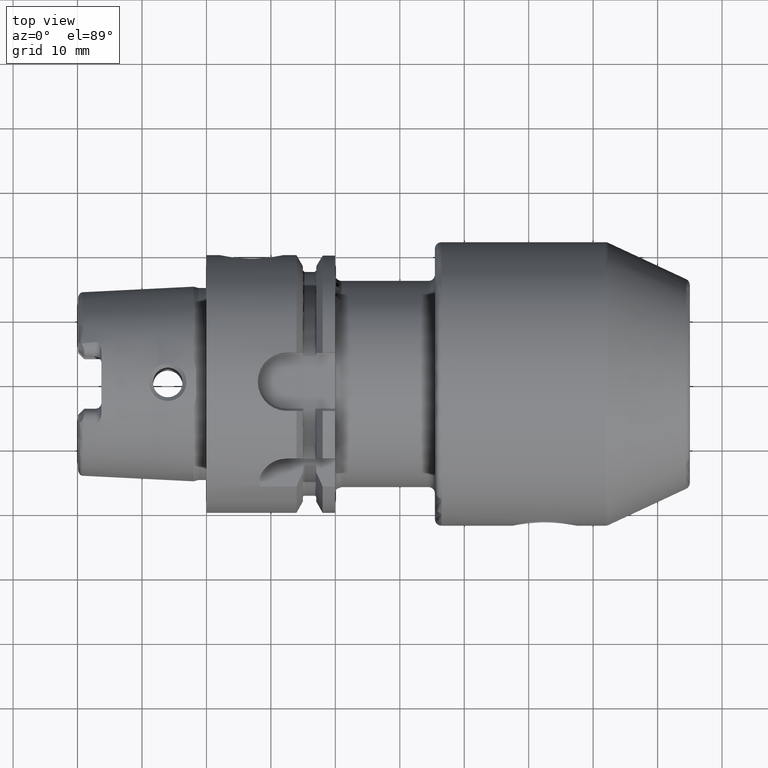
[diagram: clean part render]
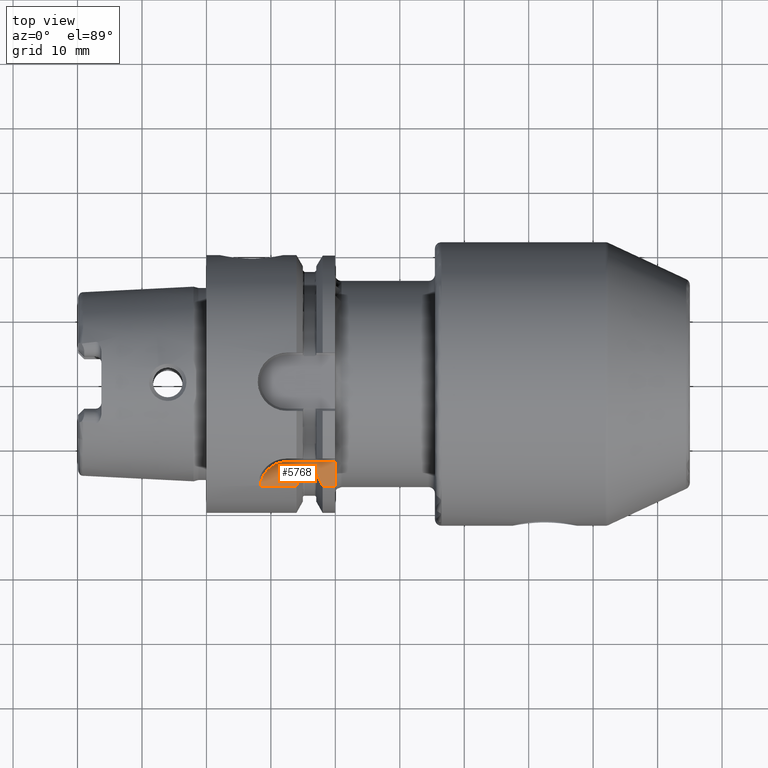
[diagram: same view with one face highlighted and labeled with its STEP entity id]
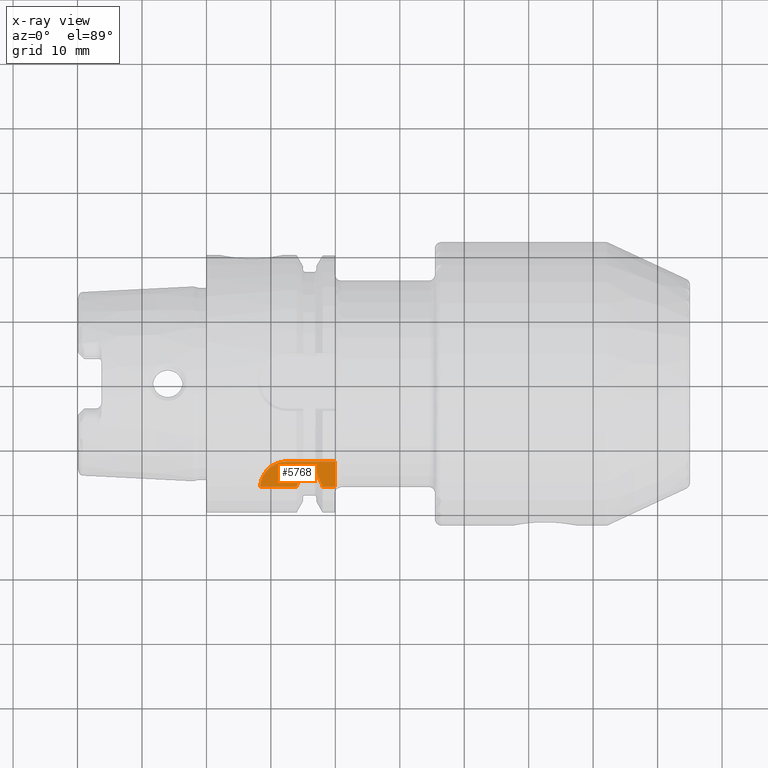
[diagram: x-ray of the same camera — body ghosted, the highlighted face saturated]
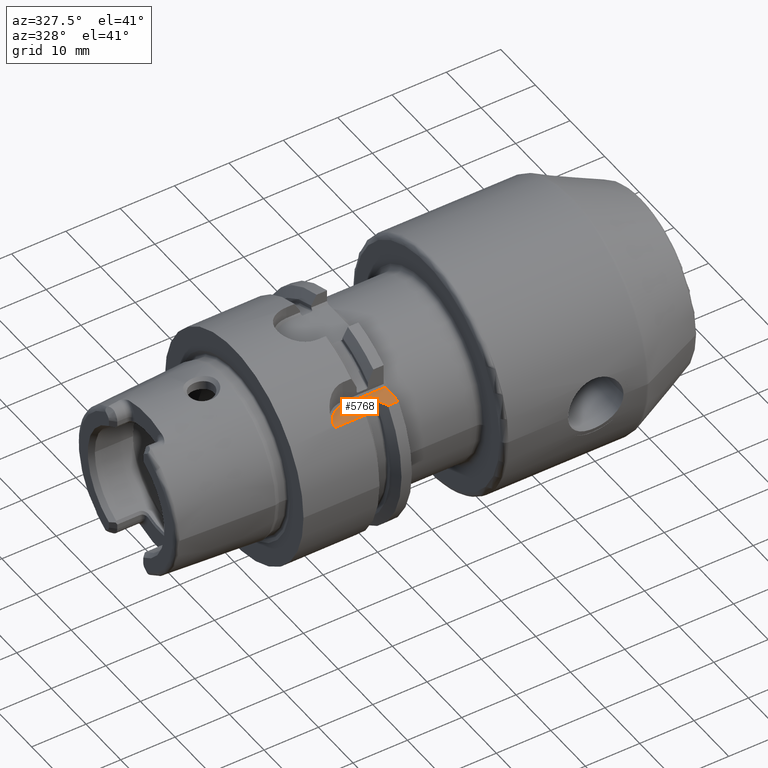
[diagram: same view with one face highlighted and labeled with its STEP entity id]
A machine part, top view. The second image highlights one B-rep face of the part: STEP entity #5768.
The next image is the same camera in x-ray: the body ghosted, the highlighted face saturated — about 0% of this face is hidden behind the body in this view.
A second angle (auxiliary view) of the same face is appended — the face is thin or edge-on in the first view.
In plain terms, the highlighted planar face has unit normal (0, 0, 1).
Its self-contained STEP definition (entity closure, byte-faithful):
#950=DIRECTION('',(9.999999999998E-1,3.226187417353E-8,-5.543925961060E-7));
#951=VECTOR('',#950,5.621520906691E0);
#952=CARTESIAN_POINT('',(8.343319394417E0,-1.611140918244E1,1.185000311653E1));
#953=LINE('',#952,#951);
#1012=DIRECTION('',(1.E0,0.E0,0.E0));
#1013=VECTOR('',#1012,1.914840301107E0);
#1014=CARTESIAN_POINT('',(1.803515969889E1,-1.611140900108E1,1.185E1));
#1015=LINE('',#1014,#1013);
#2059=DIRECTION('',(1.E0,0.E0,0.E0));
#2060=VECTOR('',#2059,1.575E0);
#2061=CARTESIAN_POINT('',(1.52125E1,-1.270701086015E1,1.185E1));
#2062=LINE('',#2061,#2060);
#2129=DIRECTION('',(0.E0,1.E0,0.E0));
#2130=VECTOR('',#2129,3.861409001077E0);
#2131=CARTESIAN_POINT('',(1.995E1,-1.611140900108E1,1.185E1));
#2132=LINE('',#2131,#2130);
#2133=CARTESIAN_POINT('',(1.70375E1,-1.390839973320E1,1.185E1));
#2134=CARTESIAN_POINT('',(1.713828706608E1,-1.413773688651E1,1.185E1));
#2135=CARTESIAN_POINT('',(1.734649495352E1,-1.460672643476E1,1.185E1));
#2136=CARTESIAN_POINT('',(1.767854805567E1,-1.534021584423E1,1.185E1));
#2137=CARTESIAN_POINT('',(1.791397076477E1,-1.585084160911E1,1.185E1));
#2138=CARTESIAN_POINT('',(1.803515969889E1,-1.611140900108E1,1.185E1));
#2140=DIRECTION('',(0.E0,1.E0,0.E0));
#2141=VECTOR('',#2140,8.616328923316E-1);
#2142=CARTESIAN_POINT('',(1.70375E1,-1.390839973320E1,1.185E1));
#2143=LINE('',#2142,#2141);
#2144=CARTESIAN_POINT('',(1.67875E1,-1.270701086015E1,1.185E1));
#2145=CARTESIAN_POINT('',(1.680913769842E1,-1.270701086015E1,1.185E1));
#2146=CARTESIAN_POINT('',(1.685099443118E1,-1.271450565490E1,1.185E1));
#2147=CARTESIAN_POINT('',(1.691051705588E1,-1.274685296718E1,1.185E1));
#2148=CARTESIAN_POINT('',(1.696380592505E1,-1.280064249144E1,1.185E1));
#2149=CARTESIAN_POINT('',(1.700603188840E1,-1.287360676896E1,1.185E1));
#2150=CARTESIAN_POINT('',(1.703215603103E1,-1.296010807975E1,1.185E1));
#2151=CARTESIAN_POINT('',(1.70375E1,-1.301741857478E1,1.185E1));
#2152=CARTESIAN_POINT('',(1.70375E1,-1.304676684087E1,1.185E1));
#2154=CARTESIAN_POINT('',(1.49625E1,-1.304676684087E1,1.185E1));
#2155=CARTESIAN_POINT('',(1.49625E1,-1.301596457443E1,1.185E1));
#2156=CARTESIAN_POINT('',(1.496845867767E1,-1.295683085267E1,1.185E1));
#2157=CARTESIAN_POINT('',(1.499483263489E1,-1.287209260104E1,1.185E1));
#2158=CARTESIAN_POINT('',(1.503571699478E1,-1.280165885908E1,1.185E1));
#2159=CARTESIAN_POINT('',(1.508718546244E1,-1.274875118735E1,1.185E1));
#2160=CARTESIAN_POINT('',(1.514653615346E1,-1.271525860735E1,1.185E1));
#2161=CARTESIAN_POINT('',(1.518980520853E1,-1.270701086015E1,1.185E1));
#2162=CARTESIAN_POINT('',(1.52125E1,-1.270701086015E1,1.185E1));
#2164=DIRECTION('',(0.E0,1.E0,0.E0));
#2165=VECTOR('',#2164,8.616328923317E-1);
#2166=CARTESIAN_POINT('',(1.49625E1,-1.390839973320E1,1.185E1));
#2167=LINE('',#2166,#2165);
#2168=CARTESIAN_POINT('',(1.49625E1,-1.390839973320E1,1.185E1));
#2169=CARTESIAN_POINT('',(1.486171293392E1,-1.413773688651E1,1.185E1));
#2170=CARTESIAN_POINT('',(1.465350504648E1,-1.460672643476E1,1.185E1));
#2171=CARTESIAN_POINT('',(1.432145194433E1,-1.534021584423E1,1.185E1));
#2172=CARTESIAN_POINT('',(1.408602923523E1,-1.585084160911E1,1.185E1));
#2173=CARTESIAN_POINT('',(1.396484030111E1,-1.611140900108E1,1.185E1));
#2175=CARTESIAN_POINT('',(1.243636824169E1,-1.635E1,1.185E1));
#2176=DIRECTION('',(0.E0,0.E0,-1.E0));
#2177=DIRECTION('',(-9.983053557392E-1,5.819292656648E-2,0.E0));
#2178=AXIS2_PLACEMENT_3D('',#2175,#2176,#2177);
#2180=DIRECTION('',(9.999999999998E-1,4.148074548608E-7,-4.147611989946E-7));
#2181=VECTOR('',#2180,7.513631745882E0);
#2182=CARTESIAN_POINT('',(1.243636825412E1,-1.225000311671E1,1.185000311636E1));
#2183=LINE('',#2182,#2181);
#3192=CARTESIAN_POINT('',(1.49625E1,-1.390839973320E1,1.185E1));
#3193=CARTESIAN_POINT('',(1.49625E1,-1.304676684087E1,1.185E1));
#3194=VERTEX_POINT('',#3192);
#3195=VERTEX_POINT('',#3193);
#3196=VERTEX_POINT('',#2162);
#3197=VERTEX_POINT('',#2144);
#3198=VERTEX_POINT('',#2152);
#3199=CARTESIAN_POINT('',(1.70375E1,-1.390839973320E1,1.185E1));
#3200=VERTEX_POINT('',#3199);
#3201=VERTEX_POINT('',#2138);
#3202=VERTEX_POINT('',#2173);
#3253=CARTESIAN_POINT('',(8.343334950643E0,-1.611141008924E1,1.185E1));
#3254=CARTESIAN_POINT('',(1.243636824169E1,-1.225001869918E1,1.185E1));
#3255=VERTEX_POINT('',#3253);
#3256=VERTEX_POINT('',#3254);
#3401=CARTESIAN_POINT('',(1.995E1,-1.611140900108E1,1.185E1));
#3402=CARTESIAN_POINT('',(1.995E1,-1.225E1,1.185E1));
#3403=VERTEX_POINT('',#3401);
#3404=VERTEX_POINT('',#3402);
#5747=CARTESIAN_POINT('',(0.E0,0.E0,1.185E1));
#5748=DIRECTION('',(0.E0,0.E0,1.E0));
#5749=DIRECTION('',(1.E0,0.E0,0.E0));
#5750=AXIS2_PLACEMENT_3D('',#5747,#5748,#5749);
#5751=PLANE('',#5750);
#5752=ORIENTED_EDGE('',*,*,#4639,.F.);
#5753=ORIENTED_EDGE('',*,*,#4542,.F.);
#5754=ORIENTED_EDGE('',*,*,#5497,.F.);
#5755=ORIENTED_EDGE('',*,*,#5469,.T.);
#5756=ORIENTED_EDGE('',*,*,#5690,.F.);
#5757=ORIENTED_EDGE('',*,*,#5648,.F.);
#5758=ORIENTED_EDGE('',*,*,#5610,.F.);
#5759=ORIENTED_EDGE('',*,*,#5175,.F.);
#5760=ORIENTED_EDGE('',*,*,#5242,.T.);
#5761=ORIENTED_EDGE('',*,*,#4471,.F.);
#5763=ORIENTED_EDGE('',*,*,#5762,.T.);
#5765=ORIENTED_EDGE('',*,*,#5764,.T.);
#5766=EDGE_LOOP('',(#5752,#5753,#5754,#5755,#5756,#5757,#5758,#5759,#5760,#5761,
#5763,#5765));
#5767=FACE_OUTER_BOUND('',#5766,.F.);
#5768=ADVANCED_FACE('',(#5767),#5751,.T.);
#2139=B_SPLINE_CURVE_WITH_KNOTS('',3,(#2133,#2134,#2135,#2136,#2137,#2138),
.UNSPECIFIED.,.F.,.F.,(4,1,1,4),(0.E0,3.333333333333E-1,6.666666666667E-1,1.E0),
.UNSPECIFIED.);
#2153=B_SPLINE_CURVE_WITH_KNOTS('',3,(#2144,#2145,#2146,#2147,#2148,#2149,#2150,
#2151,#2152),.UNSPECIFIED.,.F.,.F.,(4,1,1,1,1,1,4),(0.E0,1.666666666667E-1,
3.333333333333E-1,5.E-1,6.666666666667E-1,8.333333333333E-1,1.E0),
.UNSPECIFIED.);
#2163=B_SPLINE_CURVE_WITH_KNOTS('',3,(#2154,#2155,#2156,#2157,#2158,#2159,#2160,
#2161,#2162),.UNSPECIFIED.,.F.,.F.,(4,1,1,1,1,1,4),(0.E0,1.666666666667E-1,
3.333333333333E-1,5.E-1,6.666666666667E-1,8.333333333333E-1,1.E0),
.UNSPECIFIED.);
#2174=B_SPLINE_CURVE_WITH_KNOTS('',3,(#2168,#2169,#2170,#2171,#2172,#2173),
.UNSPECIFIED.,.F.,.F.,(4,1,1,4),(0.E0,3.333333333333E-1,6.666666666667E-1,1.E0),
.UNSPECIFIED.);
#2179=CIRCLE('',#2178,4.099981300823E0);
#4471=EDGE_CURVE('',#3255,#3202,#953,.T.);
#4542=EDGE_CURVE('',#3201,#3403,#1015,.T.);
#4639=EDGE_CURVE('',#3403,#3404,#2132,.T.);
#5175=EDGE_CURVE('',#3194,#3195,#2167,.T.);
#5242=EDGE_CURVE('',#3194,#3202,#2174,.T.);
#5469=EDGE_CURVE('',#3200,#3198,#2143,.T.);
#5497=EDGE_CURVE('',#3200,#3201,#2139,.T.);
#5610=EDGE_CURVE('',#3195,#3196,#2163,.T.);
#5648=EDGE_CURVE('',#3196,#3197,#2062,.T.);
#5690=EDGE_CURVE('',#3197,#3198,#2153,.T.);
#5762=EDGE_CURVE('',#3255,#3256,#2179,.T.);
#5764=EDGE_CURVE('',#3256,#3404,#2183,.T.);